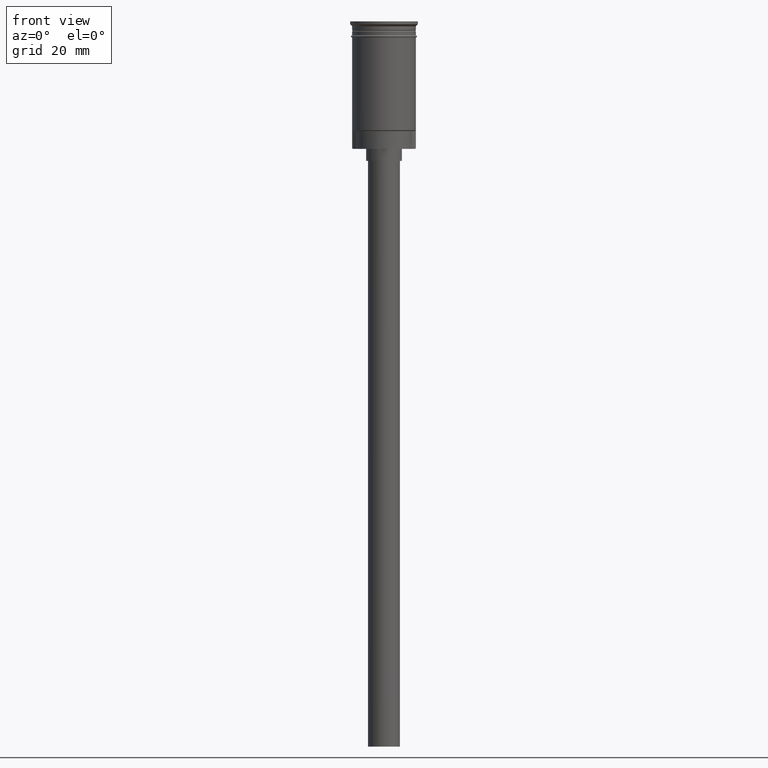
[diagram: clean part render]
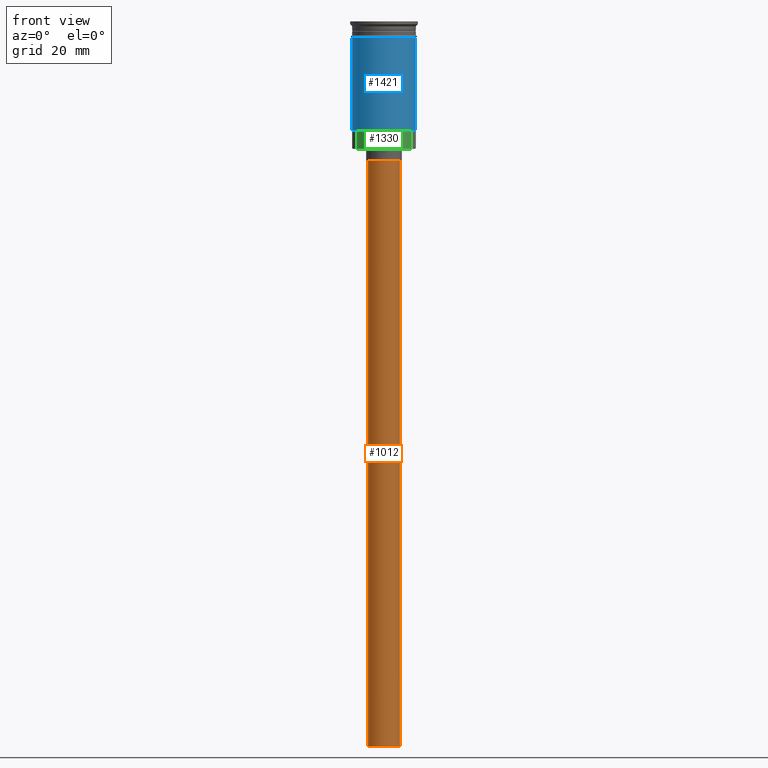
[diagram: same view with three faces highlighted in distinct colors, each labeled with its STEP entity id]
A machine part, front view with three faces highlighted in distinct colors.
Their STEP definitions:

[orange] entity #1012 — the highlighted cylindrical surface (edge-blend (fillet) strip) has radius 4 mm, axis along (-0, -0, 1).
#22 = VERTEX_POINT ( 'NONE', #929 ) ;
#34 = EDGE_CURVE ( 'NONE', #730, #489, #943, .T. ) ;
#56 = EDGE_CURVE ( 'NONE', #22, #215, #796, .T. ) ;
#88 = VECTOR ( 'NONE', #681, 1000.000000000000000 ) ;
#93 = CIRCLE ( 'NONE', #1259, 4.000000000000000000 ) ;
#141 = CIRCLE ( 'NONE', #887, 4.000000000000000000 ) ;
#215 = VERTEX_POINT ( 'NONE', #1431 ) ;
#239 = CARTESIAN_POINT ( 'NONE',  ( 4.000000000000000000, 0.000000000000000000, -35.00000000000000000 ) ) ;
#286 = EDGE_LOOP ( 'NONE', ( #679, #905, #1242, #1506 ) ) ;
#303 = DIRECTION ( 'NONE',  ( -1.000000000000000000, 0.000000000000000000, 0.000000000000000000 ) ) ;
#417 = DIRECTION ( 'NONE',  ( 0.000000000000000000, 0.000000000000000000, -1.000000000000000000 ) ) ;
#443 = CARTESIAN_POINT ( 'NONE',  ( -4.000000000000000000, 4.898587196589412829E-16, -182.0000000000000000 ) ) ;
#489 = VERTEX_POINT ( 'NONE', #239 ) ;
#547 = CARTESIAN_POINT ( 'NONE',  ( 0.000000000000000000, 0.000000000000000000, -182.0000000000000000 ) ) ;
#617 = CARTESIAN_POINT ( 'NONE',  ( 4.000000000000000000, 0.000000000000000000, -182.0000000000000000 ) ) ;
#668 = AXIS2_PLACEMENT_3D ( 'NONE', #1310, #1426, #827 ) ;
#679 = ORIENTED_EDGE ( 'NONE', *, *, #56, .F. ) ;
#681 = DIRECTION ( 'NONE',  ( -0.000000000000000000, -0.000000000000000000, 1.000000000000000000 ) ) ;
#691 = CARTESIAN_POINT ( 'NONE',  ( 4.000000000000000000, 0.000000000000000000, -182.0000000000000000 ) ) ;
#730 = VERTEX_POINT ( 'NONE', #617 ) ;
#796 = LINE ( 'NONE', #443, #994 ) ;
#827 = DIRECTION ( 'NONE',  ( 1.000000000000000000, 0.000000000000000000, 0.000000000000000000 ) ) ;
#887 = AXIS2_PLACEMENT_3D ( 'NONE', #547, #417, #907 ) ;
#905 = ORIENTED_EDGE ( 'NONE', *, *, #1317, .F. ) ;
#907 = DIRECTION ( 'NONE',  ( -1.000000000000000000, 0.000000000000000000, 0.000000000000000000 ) ) ;
#925 = EDGE_CURVE ( 'NONE', #489, #215, #93, .T. ) ;
#929 = CARTESIAN_POINT ( 'NONE',  ( -4.000000000000000000, 4.898587196589412829E-16, -182.0000000000000000 ) ) ;
#939 = CYLINDRICAL_SURFACE ( 'NONE', #668, 4.000000000000000000 ) ;
#943 = LINE ( 'NONE', #691, #88 ) ;
#994 = VECTOR ( 'NONE', #1445, 1000.000000000000000 ) ;
#1012 = ADVANCED_FACE ( 'NONE', ( #1064 ), #939, .T. ) ;
#1064 = FACE_OUTER_BOUND ( 'NONE', #286, .T. ) ;
#1242 = ORIENTED_EDGE ( 'NONE', *, *, #34, .T. ) ;
#1259 = AXIS2_PLACEMENT_3D ( 'NONE', #1414, #1278, #303 ) ;
#1278 = DIRECTION ( 'NONE',  ( 0.000000000000000000, 0.000000000000000000, -1.000000000000000000 ) ) ;
#1310 = CARTESIAN_POINT ( 'NONE',  ( 0.000000000000000000, 0.000000000000000000, -182.0000000000000000 ) ) ;
#1317 = EDGE_CURVE ( 'NONE', #730, #22, #141, .T. ) ;
#1414 = CARTESIAN_POINT ( 'NONE',  ( 0.000000000000000000, 0.000000000000000000, -35.00000000000000000 ) ) ;
#1426 = DIRECTION ( 'NONE',  ( -0.000000000000000000, -0.000000000000000000, 1.000000000000000000 ) ) ;
#1431 = CARTESIAN_POINT ( 'NONE',  ( -4.000000000000000000, 4.898587196589412829E-16, -35.00000000000000000 ) ) ;
#1445 = DIRECTION ( 'NONE',  ( -0.000000000000000000, -0.000000000000000000, 1.000000000000000000 ) ) ;
#1506 = ORIENTED_EDGE ( 'NONE', *, *, #925, .T. ) ;

[blue] entity #1421 — the highlighted cylindrical surface (edge-blend (fillet) strip) has radius 8 mm, axis along (-0, -0, 1).
#46 = CARTESIAN_POINT ( 'NONE',  ( 7.999999999999996447, 0.000000000000000000, 0.000000000000000000 ) ) ;
#75 = DIRECTION ( 'NONE',  ( 1.000000000000000000, 0.000000000000000000, 0.000000000000000000 ) ) ;
#101 = EDGE_CURVE ( 'NONE', #1563, #647, #1085, .T. ) ;
#104 = DIRECTION ( 'NONE',  ( -0.000000000000000000, -0.000000000000000000, 1.000000000000000000 ) ) ;
#174 = ORIENTED_EDGE ( 'NONE', *, *, #101, .F. ) ;
#242 = DIRECTION ( 'NONE',  ( -1.000000000000000000, 0.000000000000000000, 0.000000000000000000 ) ) ;
#253 = EDGE_CURVE ( 'NONE', #1233, #506, #1423, .T. ) ;
#255 = CARTESIAN_POINT ( 'NONE',  ( 0.000000000000000000, 0.000000000000000000, -27.29999999999996518 ) ) ;
#354 = DIRECTION ( 'NONE',  ( -0.000000000000000000, -0.000000000000000000, 1.000000000000000000 ) ) ;
#365 = EDGE_LOOP ( 'NONE', ( #174, #874, #1221, #660 ) ) ;
#400 = CIRCLE ( 'NONE', #484, 7.999999999999996447 ) ;
#484 = AXIS2_PLACEMENT_3D ( 'NONE', #255, #354, #242 ) ;
#506 = VERTEX_POINT ( 'NONE', #1091 ) ;
#529 = VECTOR ( 'NONE', #1174, 1000.000000000000000 ) ;
#626 = CARTESIAN_POINT ( 'NONE',  ( -7.999999999999992895, 0.000000000000000000, -27.29999999999996518 ) ) ;
#628 = DIRECTION ( 'NONE',  ( 1.000000000000000000, 0.000000000000000000, 0.000000000000000000 ) ) ;
#647 = VERTEX_POINT ( 'NONE', #1339 ) ;
#660 = ORIENTED_EDGE ( 'NONE', *, *, #1147, .F. ) ;
#661 = AXIS2_PLACEMENT_3D ( 'NONE', #1586, #104, #628 ) ;
#664 = VECTOR ( 'NONE', #920, 1000.000000000000000 ) ;
#756 = EDGE_CURVE ( 'NONE', #1563, #1233, #400, .T. ) ;
#773 = CARTESIAN_POINT ( 'NONE',  ( 7.999999999999996447, 9.797174393178821713E-16, -27.29999999999996518 ) ) ;
#817 = AXIS2_PLACEMENT_3D ( 'NONE', #930, #1086, #75 ) ;
#874 = ORIENTED_EDGE ( 'NONE', *, *, #756, .T. ) ;
#920 = DIRECTION ( 'NONE',  ( -0.000000000000000000, -0.000000000000000000, 1.000000000000000000 ) ) ;
#930 = CARTESIAN_POINT ( 'NONE',  ( 0.000000000000000000, 0.000000000000000000, 0.000000000000000000 ) ) ;
#1085 = LINE ( 'NONE', #1307, #664 ) ;
#1086 = DIRECTION ( 'NONE',  ( -0.000000000000000000, -0.000000000000000000, 1.000000000000000000 ) ) ;
#1091 = CARTESIAN_POINT ( 'NONE',  ( 8.000000000000000000, 0.000000000000000000, -3.999999999999997335 ) ) ;
#1147 = EDGE_CURVE ( 'NONE', #647, #506, #1254, .T. ) ;
#1174 = DIRECTION ( 'NONE',  ( -0.000000000000000000, -0.000000000000000000, 1.000000000000000000 ) ) ;
#1196 = FACE_OUTER_BOUND ( 'NONE', #365, .T. ) ;
#1221 = ORIENTED_EDGE ( 'NONE', *, *, #253, .T. ) ;
#1233 = VERTEX_POINT ( 'NONE', #773 ) ;
#1254 = CIRCLE ( 'NONE', #661, 8.000000000000000000 ) ;
#1298 = CYLINDRICAL_SURFACE ( 'NONE', #817, 7.999999999999996447 ) ;
#1307 = CARTESIAN_POINT ( 'NONE',  ( -7.999999999999996447, 9.797174393178821713E-16, 0.000000000000000000 ) ) ;
#1339 = CARTESIAN_POINT ( 'NONE',  ( -8.000000000000000000, 9.797174393178825657E-16, -3.999999999999997335 ) ) ;
#1421 = ADVANCED_FACE ( 'NONE', ( #1196 ), #1298, .T. ) ;
#1423 = LINE ( 'NONE', #46, #529 ) ;
#1563 = VERTEX_POINT ( 'NONE', #626 ) ;
#1586 = CARTESIAN_POINT ( 'NONE',  ( 0.000000000000000000, 0.000000000000000000, -3.999999999999997335 ) ) ;

[green] entity #1330 — the highlighted cylindrical surface (edge-blend (fillet) strip) has radius 7.05 mm, axis along (-0, -0, 1).
#18 = DIRECTION ( 'NONE',  ( 1.000000000000000000, 0.000000000000000000, 0.000000000000000000 ) ) ;
#100 = CARTESIAN_POINT ( 'NONE',  ( -6.839661847014926188, -1.709247149621246686, -32.00000000000000000 ) ) ;
#122 = CARTESIAN_POINT ( 'NONE',  ( 0.000000000000000000, 0.000000000000000000, -32.00000000000000000 ) ) ;
#214 = DIRECTION ( 'NONE',  ( 0.000000000000000000, 0.000000000000000000, -1.000000000000000000 ) ) ;
#250 = DIRECTION ( 'NONE',  ( 0.000000000000000000, 0.000000000000000000, -1.000000000000000000 ) ) ;
#264 = AXIS2_PLACEMENT_3D ( 'NONE', #122, #250, #616 ) ;
#270 = ORIENTED_EDGE ( 'NONE', *, *, #607, .T. ) ;
#310 = VERTEX_POINT ( 'NONE', #100 ) ;
#334 = ORIENTED_EDGE ( 'NONE', *, *, #1600, .F. ) ;
#346 = CIRCLE ( 'NONE', #913, 7.049999999999998934 ) ;
#386 = CARTESIAN_POINT ( 'NONE',  ( 6.839661847014925300, -1.709247149621250017, -27.50000000000000355 ) ) ;
#424 = FACE_OUTER_BOUND ( 'NONE', #839, .T. ) ;
#427 = VECTOR ( 'NONE', #809, 1000.000000000000000 ) ;
#562 = ORIENTED_EDGE ( 'NONE', *, *, #1130, .F. ) ;
#607 = EDGE_CURVE ( 'NONE', #627, #1347, #711, .T. ) ;
#616 = DIRECTION ( 'NONE',  ( -1.000000000000000000, 0.000000000000000000, 0.000000000000000000 ) ) ;
#627 = VERTEX_POINT ( 'NONE', #699 ) ;
#641 = CYLINDRICAL_SURFACE ( 'NONE', #1565, 7.049999999999998934 ) ;
#699 = CARTESIAN_POINT ( 'NONE',  ( 6.839661847014925300, -1.709247149621250017, -32.00000000000000000 ) ) ;
#711 = LINE ( 'NONE', #964, #427 ) ;
#729 = CARTESIAN_POINT ( 'NONE',  ( -6.839661847014926188, -1.709247149621246686, -32.00000000000000000 ) ) ;
#776 = ORIENTED_EDGE ( 'NONE', *, *, #1395, .T. ) ;
#809 = DIRECTION ( 'NONE',  ( -0.000000000000000000, -0.000000000000000000, 1.000000000000000000 ) ) ;
#839 = EDGE_LOOP ( 'NONE', ( #776, #334, #562, #270 ) ) ;
#913 = AXIS2_PLACEMENT_3D ( 'NONE', #1308, #214, #1559 ) ;
#948 = VECTOR ( 'NONE', #1249, 1000.000000000000000 ) ;
#964 = CARTESIAN_POINT ( 'NONE',  ( 6.839661847014925300, -1.709247149621250017, -32.00000000000000000 ) ) ;
#1006 = LINE ( 'NONE', #729, #948 ) ;
#1017 = CARTESIAN_POINT ( 'NONE',  ( 0.000000000000000000, 0.000000000000000000, -32.00000000000000000 ) ) ;
#1095 = VERTEX_POINT ( 'NONE', #1358 ) ;
#1108 = CIRCLE ( 'NONE', #264, 7.049999999999998934 ) ;
#1130 = EDGE_CURVE ( 'NONE', #627, #310, #1108, .T. ) ;
#1142 = DIRECTION ( 'NONE',  ( -0.000000000000000000, -0.000000000000000000, 1.000000000000000000 ) ) ;
#1249 = DIRECTION ( 'NONE',  ( -0.000000000000000000, -0.000000000000000000, 1.000000000000000000 ) ) ;
#1308 = CARTESIAN_POINT ( 'NONE',  ( 0.000000000000000000, 0.000000000000000000, -27.50000000000000355 ) ) ;
#1330 = ADVANCED_FACE ( 'NONE', ( #424 ), #641, .T. ) ;
#1347 = VERTEX_POINT ( 'NONE', #386 ) ;
#1358 = CARTESIAN_POINT ( 'NONE',  ( -6.839661847014926188, -1.709247149621246686, -27.50000000000000355 ) ) ;
#1395 = EDGE_CURVE ( 'NONE', #1347, #1095, #346, .T. ) ;
#1559 = DIRECTION ( 'NONE',  ( -1.000000000000000000, 0.000000000000000000, 0.000000000000000000 ) ) ;
#1565 = AXIS2_PLACEMENT_3D ( 'NONE', #1017, #1142, #18 ) ;
#1600 = EDGE_CURVE ( 'NONE', #310, #1095, #1006, .T. ) ;